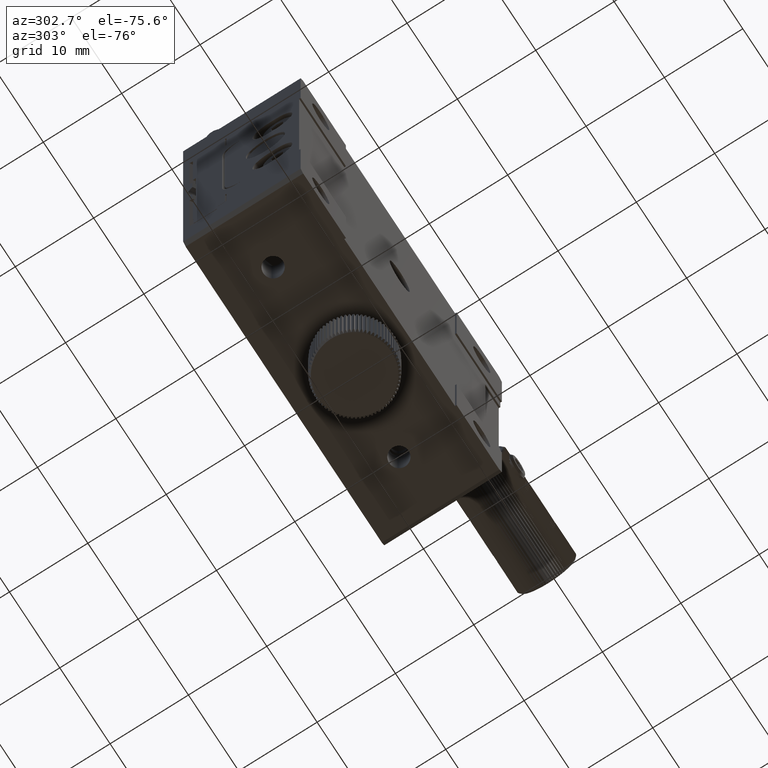
[diagram: clean part render]
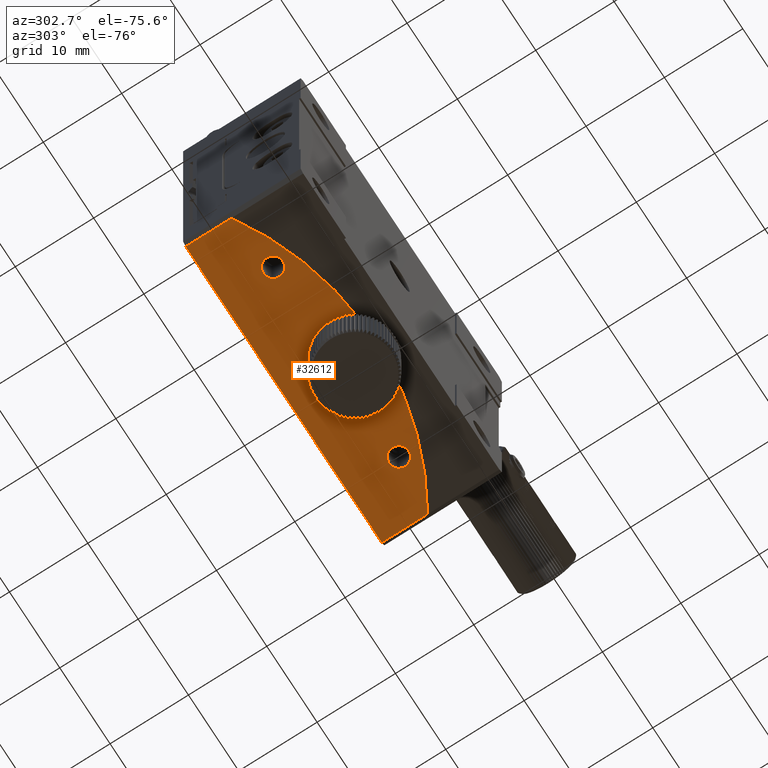
[diagram: same view with one face highlighted and labeled with its STEP entity id]
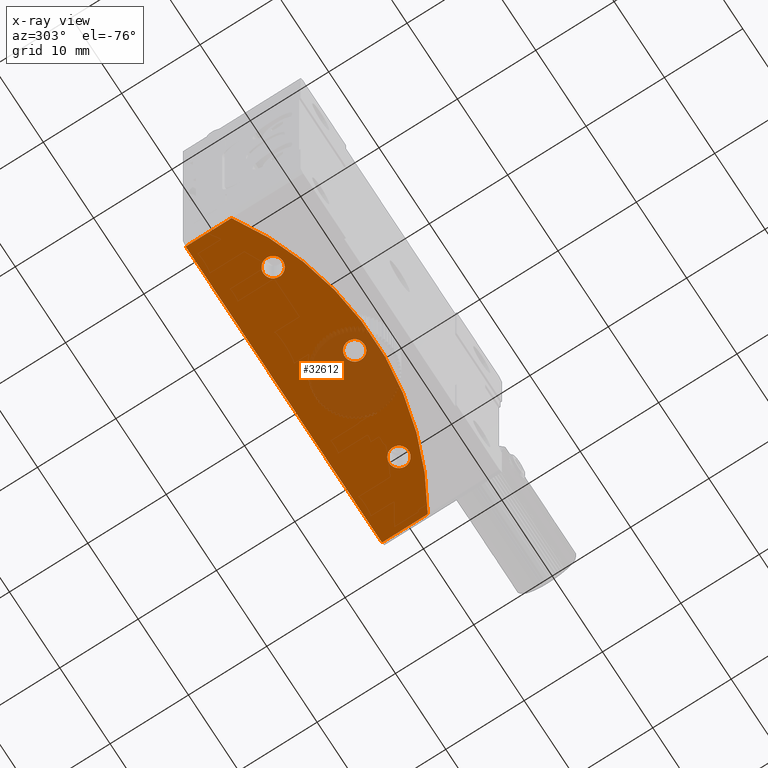
[diagram: x-ray of the same camera — body ghosted, the highlighted face saturated]
A machine part, auxiliary view. The second image highlights one B-rep face of the part: STEP entity #32612.
The next image is the same camera in x-ray: the body ghosted, the highlighted face saturated — about 19% of this face is hidden behind the body in this view.
In plain terms, the highlighted planar face has unit normal (0, 0, 1).
Its self-contained STEP definition (entity closure, byte-faithful):
#1041 = DIRECTION ( 'NONE',  ( 0.000000000000000000, -1.000000000000000000, -0.000000000000000000 ) ) ;
#2531 = VERTEX_POINT ( 'NONE', #51841 ) ;
#2574 = VERTEX_POINT ( 'NONE', #25071 ) ;
#2901 = CARTESIAN_POINT ( 'NONE',  ( 0.000000000000000000, 0.000000000000000000, -20.00000000000000000 ) ) ;
#3086 = EDGE_CURVE ( 'NONE', #9035, #9035, #29823, .T. ) ;
#3599 = DIRECTION ( 'NONE',  ( 0.000000000000000000, 0.000000000000000000, 1.000000000000000000 ) ) ;
#5019 = LINE ( 'NONE', #30165, #31387 ) ;
#6417 = DIRECTION ( 'NONE',  ( -1.000000000000000000, -0.000000000000000000, 0.000000000000000000 ) ) ;
#7488 = DIRECTION ( 'NONE',  ( -1.000000000000000000, 0.000000000000000000, 0.000000000000000000 ) ) ;
#8135 = CIRCLE ( 'NONE', #59629, 1.249999999999994227 ) ;
#9035 = VERTEX_POINT ( 'NONE', #14838 ) ;
#9870 = EDGE_LOOP ( 'NONE', ( #18455 ) ) ;
#10023 = ORIENTED_EDGE ( 'NONE', *, *, #3086, .F. ) ;
#11193 = CARTESIAN_POINT ( 'NONE',  ( -19.50000000000000355, -30.85449724108300273, -20.00000000000000000 ) ) ;
#12559 = VERTEX_POINT ( 'NONE', #11193 ) ;
#13866 = DIRECTION ( 'NONE',  ( -1.000000000000000000, 0.000000000000000000, 0.000000000000000000 ) ) ;
#14188 = AXIS2_PLACEMENT_3D ( 'NONE', #53233, #3599, #18754 ) ;
#14218 = EDGE_CURVE ( 'NONE', #31215, #31215, #8135, .T. ) ;
#14738 = DIRECTION ( 'NONE',  ( -0.000000000000000000, 1.000000000000000000, 0.000000000000000000 ) ) ;
#14838 = CARTESIAN_POINT ( 'NONE',  ( 11.25000000000000711, -31.67258278069533262, -20.00000000000000000 ) ) ;
#15805 = CARTESIAN_POINT ( 'NONE',  ( -13.74999999999999467, -31.67258278069533262, -20.00000000000000000 ) ) ;
#18455 = ORIENTED_EDGE ( 'NONE', *, *, #14218, .F. ) ;
#18519 = ORIENTED_EDGE ( 'NONE', *, *, #62235, .F. ) ;
#18754 = DIRECTION ( 'NONE',  ( 1.000000000000000000, 0.000000000000000000, -0.000000000000000000 ) ) ;
#20185 = ORIENTED_EDGE ( 'NONE', *, *, #38107, .F. ) ;
#20709 = AXIS2_PLACEMENT_3D ( 'NONE', #2901, #42518, #13866 ) ;
#22669 = EDGE_CURVE ( 'NONE', #55975, #2574, #5019, .T. ) ;
#24650 = EDGE_LOOP ( 'NONE', ( #10023 ) ) ;
#25071 = CARTESIAN_POINT ( 'NONE',  ( 19.50000000000001066, -25.00000000000000355, -20.00000000000000355 ) ) ;
#27215 = DIRECTION ( 'NONE',  ( -0.000000000000000000, -0.000000000000000000, -1.000000000000000000 ) ) ;
#27465 = AXIS2_PLACEMENT_3D ( 'NONE', #50615, #30634, #41255 ) ;
#27544 = CARTESIAN_POINT ( 'NONE',  ( 12.50000000000000000, -31.67258278069533262, -20.00000000000000000 ) ) ;
#29823 = CIRCLE ( 'NONE', #38042, 1.249999999999994227 ) ;
#30165 = CARTESIAN_POINT ( 'NONE',  ( 19.50000000000001066, 0.000000000000000000, -20.00000000000000000 ) ) ;
#30634 = DIRECTION ( 'NONE',  ( -0.000000000000000000, -0.000000000000000000, -1.000000000000000000 ) ) ;
#30974 = EDGE_LOOP ( 'NONE', ( #62392, #18519, #44033, #20185 ) ) ;
#31215 = VERTEX_POINT ( 'NONE', #15805 ) ;
#31387 = VECTOR ( 'NONE', #14738, 1000.000000000000000 ) ;
#31771 = EDGE_CURVE ( 'NONE', #2531, #2531, #55254, .T. ) ;
#32346 = DIRECTION ( 'NONE',  ( -1.000000000000000000, 0.000000000000000000, 0.000000000000000000 ) ) ;
#32612 = ADVANCED_FACE ( 'NONE', ( #48072, #38722, #37767, #62914 ), #63536, .F. ) ;
#34132 = EDGE_LOOP ( 'NONE', ( #35976 ) ) ;
#35976 = ORIENTED_EDGE ( 'NONE', *, *, #31771, .F. ) ;
#36075 = LINE ( 'NONE', #61232, #53551 ) ;
#37767 = FACE_OUTER_BOUND ( 'NONE', #30974, .T. ) ;
#38042 = AXIS2_PLACEMENT_3D ( 'NONE', #27544, #27215, #32346 ) ;
#38107 = EDGE_CURVE ( 'NONE', #12559, #55975, #44374, .T. ) ;
#38722 = FACE_BOUND ( 'NONE', #9870, .T. ) ;
#38747 = VECTOR ( 'NONE', #1041, 1000.000000000000000 ) ;
#38941 = CARTESIAN_POINT ( 'NONE',  ( 19.50000000000000711, -30.85449724108300273, -20.00000000000000000 ) ) ;
#41255 = DIRECTION ( 'NONE',  ( -1.000000000000000000, 0.000000000000000000, 0.000000000000000000 ) ) ;
#41308 = CARTESIAN_POINT ( 'NONE',  ( -19.50000000000000000, 0.000000000000000000, -20.00000000000000000 ) ) ;
#41969 = CARTESIAN_POINT ( 'NONE',  ( -12.50000000000000000, -31.67258278069533262, -20.00000000000000000 ) ) ;
#42010 = CARTESIAN_POINT ( 'NONE',  ( -19.50000000000000355, -25.00000000000000355, -20.00000000000000355 ) ) ;
#42518 = DIRECTION ( 'NONE',  ( 0.000000000000000000, 0.000000000000000000, 1.000000000000000000 ) ) ;
#44033 = ORIENTED_EDGE ( 'NONE', *, *, #22669, .F. ) ;
#44374 = CIRCLE ( 'NONE', #20709, 36.49999999999998579 ) ;
#45488 = LINE ( 'NONE', #41308, #38747 ) ;
#48072 = FACE_BOUND ( 'NONE', #34132, .T. ) ;
#49385 = VERTEX_POINT ( 'NONE', #42010 ) ;
#50615 = CARTESIAN_POINT ( 'NONE',  ( 0.000000000000000000, -34.04999999999998295, -20.00000000000000000 ) ) ;
#51654 = DIRECTION ( 'NONE',  ( -0.000000000000000000, -0.000000000000000000, -1.000000000000000000 ) ) ;
#51841 = CARTESIAN_POINT ( 'NONE',  ( -1.249999999999992895, -34.04999999999998295, -20.00000000000000000 ) ) ;
#53233 = CARTESIAN_POINT ( 'NONE',  ( 0.000000000000000000, 0.000000000000000000, -20.00000000000000000 ) ) ;
#53551 = VECTOR ( 'NONE', #6417, 1000.000000000000000 ) ;
#55254 = CIRCLE ( 'NONE', #27465, 1.249999999999992895 ) ;
#55975 = VERTEX_POINT ( 'NONE', #38941 ) ;
#57794 = EDGE_CURVE ( 'NONE', #49385, #12559, #45488, .T. ) ;
#59629 = AXIS2_PLACEMENT_3D ( 'NONE', #41969, #51654, #7488 ) ;
#61232 = CARTESIAN_POINT ( 'NONE',  ( 20.00000000000000711, -25.00000000000000355, -20.00000000000000000 ) ) ;
#62235 = EDGE_CURVE ( 'NONE', #2574, #49385, #36075, .T. ) ;
#62392 = ORIENTED_EDGE ( 'NONE', *, *, #57794, .F. ) ;
#62914 = FACE_BOUND ( 'NONE', #24650, .T. ) ;
#63536 = PLANE ( 'NONE',  #14188 ) ;